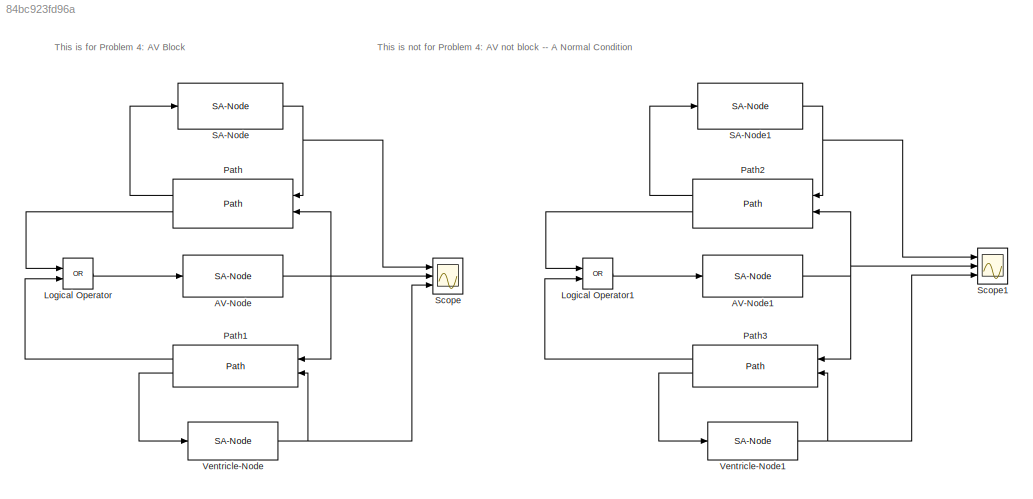
MODEL slx_84bc923fd96a
KIND model
CONFIG AbsTol = auto
CONFIG EnableMultiTasking = off
CONFIG FixedStep = 1
CONFIG MaxStep = auto
CONFIG MinStep = auto
CONFIG RelTol = 1e-3
CONFIG SampleTimeConstraint = Unconstrained
CONFIG Solver = FixedStepDiscrete
CONFIG SolverName = FixedStepDiscrete
CONFIG StartTime = 0.0
CONFIG StopTime = 10000
BLOCK [Reference] AV-Node  REF=model_library/SA-Node
  Ports = [1, 1]
  SourceBlock = model_library/SA-Node
  SourceType = SubSystem
BLOCK [Reference] AV-Node1  REF=model_library/SA-Node
  Ports = [1, 1]
  SourceBlock = model_library/SA-Node
  SourceType = SubSystem
BLOCK [Logic] Logical Operator
  AllPortsSameDT = off
  Operator = OR
  OutDataTypeStr = boolean
  Ports = [2, 1]
BLOCK [Logic] Logical Operator1
  AllPortsSameDT = off
  Operator = OR
  OutDataTypeStr = boolean
  Ports = [2, 1]
BLOCK [Reference] Path  REF=model_library/Path
  Ports = [2, 2]
  SourceBlock = model_library/Path
  SourceType = SubSystem
BLOCK [Reference] Path1  REF=model_library/Path
  Ports = [2, 2]
  SourceBlock = model_library/Path
  SourceType = SubSystem
BLOCK [Reference] Path2  REF=model_library/Path
  Ports = [2, 2]
  SourceBlock = model_library/Path
  SourceType = SubSystem
BLOCK [Reference] Path3  REF=model_library/Path
  Ports = [2, 2]
  SourceBlock = model_library/Path
  SourceType = SubSystem
BLOCK [Reference] SA-Node  REF=model_library/SA-Node
  Ports = [1, 1]
  SourceBlock = model_library/SA-Node
  SourceType = SubSystem
BLOCK [Reference] SA-Node1  REF=model_library/SA-Node
  Ports = [1, 1]
  SourceBlock = model_library/SA-Node
  SourceType = SubSystem
BLOCK [Scope] Scope
  NumInputPorts = 3
  Ports = [3]
  ScopeSpecificationString = Simulink.scopes.TimeScopeBlockCfg('CurrentConfiguration', extmgr.ConfigurationSet(extmgr.Configuration('Core','General UI',true),extmgr.Configuration('Core','Source UI',true),extmgr.Configuration('Sources','WiredSimulink',true,'DataLoggingSaveFormat','Array','DataLoggingDecimation','1','DataLoggingDecimateData',true),extmgr.Configuration('Visuals','Time Domain',true,'SerializedDisplays',{struct('M...<+2325ch>
BLOCK [Scope] Scope1
  NumInputPorts = 3
  Ports = [3]
  ScopeSpecificationString = Simulink.scopes.TimeScopeBlockCfg('CurrentConfiguration', extmgr.ConfigurationSet(extmgr.Configuration('Core','General UI',true),extmgr.Configuration('Core','Source UI',true),extmgr.Configuration('Sources','WiredSimulink',true,'DataLoggingSaveFormat','Array','DataLoggingDecimation','1','DataLoggingDecimateData',true,'DataLoggingVariableName','ScopeData1'),extmgr.Configuration('Visuals','Time Domai...<+2357ch>
BLOCK [Reference] Ventricle-Node  REF=model_library/SA-Node
  Ports = [1, 1]
  SourceBlock = model_library/SA-Node
  SourceType = SubSystem
BLOCK [Reference] Ventricle-Node1  REF=model_library/SA-Node
  Ports = [1, 1]
  SourceBlock = model_library/SA-Node
  SourceType = SubSystem
ANNOTATION (root): This is for Problem 4: AV Block
ANNOTATION (root): This is not for Problem 4: AV not block -- A Normal Condition
NET AV-Node1:1 -> Path2:2, Path3:1, Scope1:2
NET AV-Node:1 -> Path1:1, Path:2, Scope:2
LINE Logical Operator1:1 -> AV-Node1:1
LINE Logical Operator:1 -> AV-Node:1
LINE Path1:1 -> Logical Operator:2
LINE Path1:2 -> Ventricle-Node:1
LINE Path2:1 -> SA-Node1:1
LINE Path2:2 -> Logical Operator1:1
LINE Path3:1 -> Logical Operator1:2
LINE Path3:2 -> Ventricle-Node1:1
LINE Path:1 -> SA-Node:1
LINE Path:2 -> Logical Operator:1
NET SA-Node1:1 -> Path2:1, Scope1:1
NET SA-Node:1 -> Path:1, Scope:1
NET Ventricle-Node1:1 -> Path3:2, Scope1:3
NET Ventricle-Node:1 -> Path1:2, Scope:3
note: NET lines group one-source signal fan-out (src -> all destinations, sorted); 1:1 wires keep LINE
